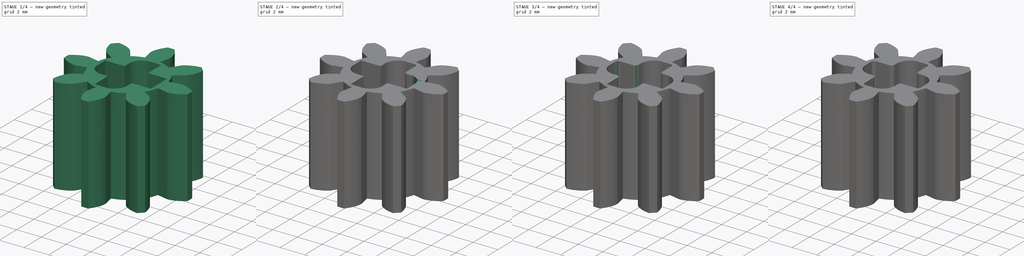
[diagram: build sequence overview — one tinted view per stage of 4, left to right]
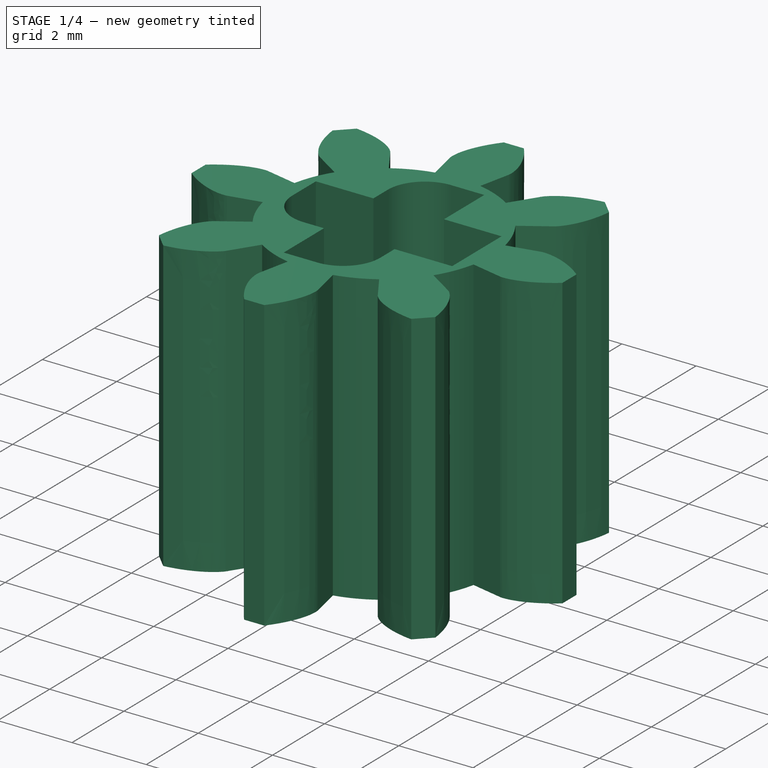
[diagram: stage 1 of 4 — iso view after this stage's code; geometry added in this stage tinted green]
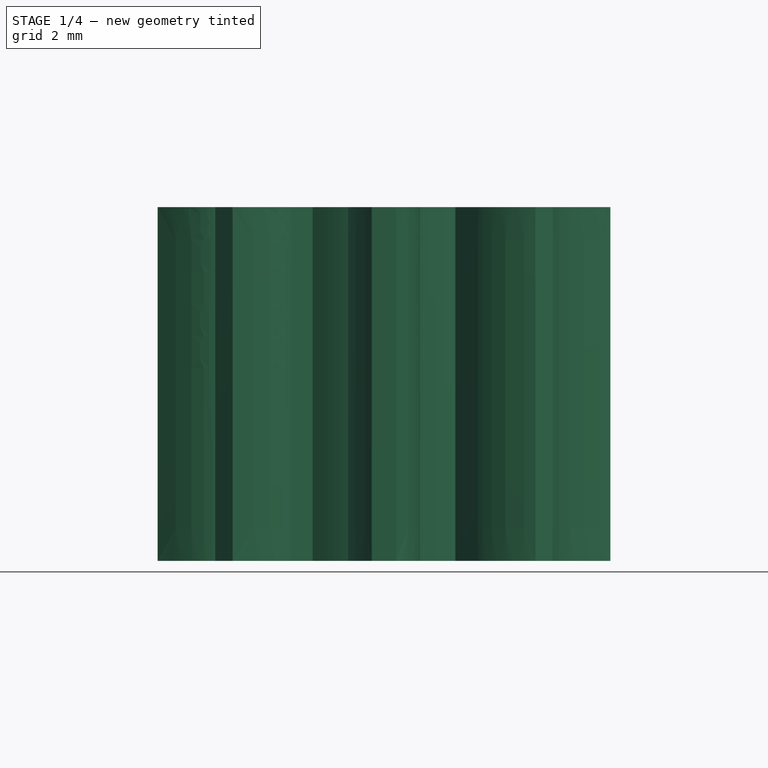
[diagram: stage 1 of 4 — front view after this stage's code; geometry added in this stage tinted green]
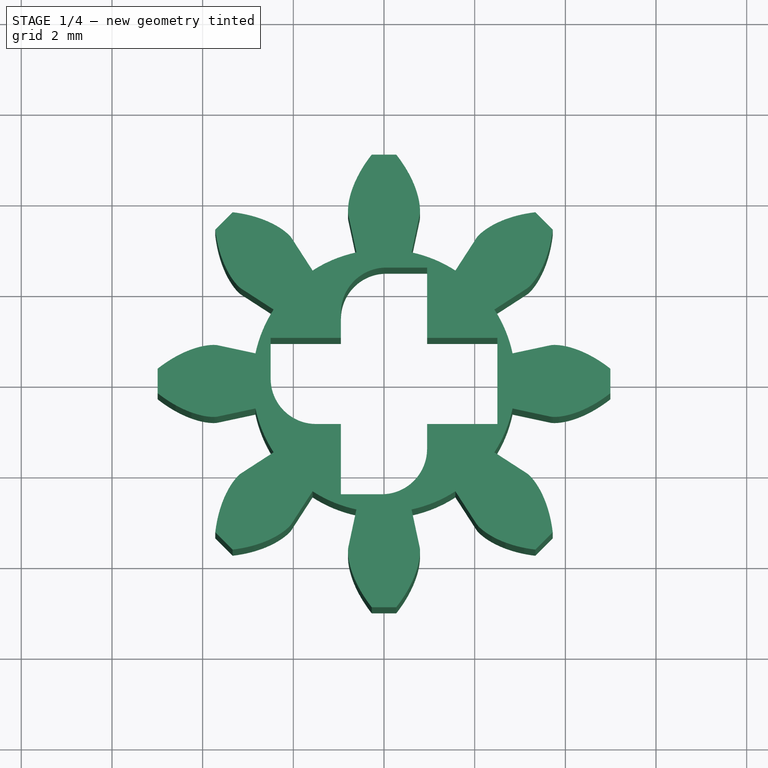
[diagram: stage 1 of 4 — top view after this stage's code; geometry added in this stage tinted green]
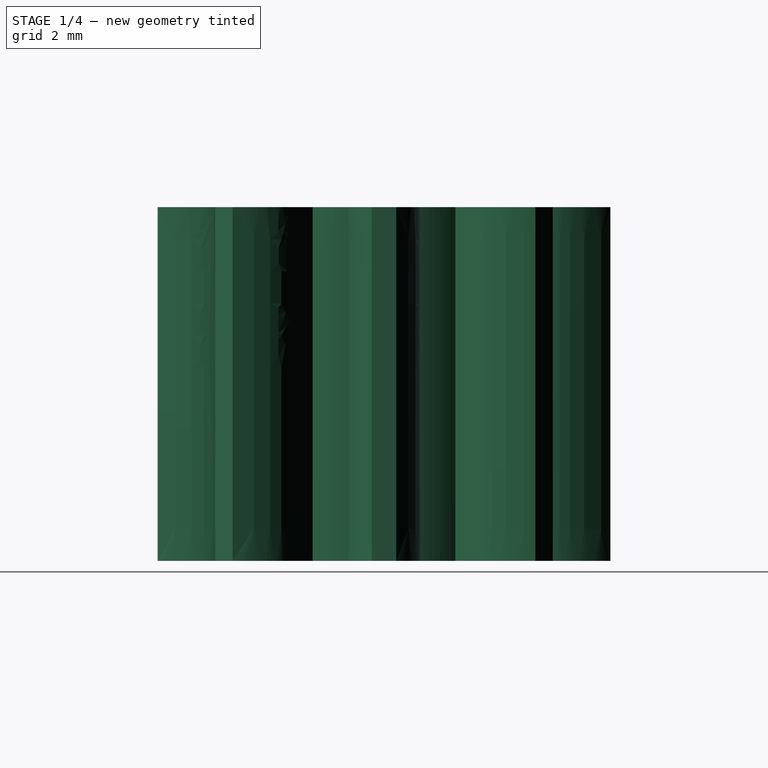
[diagram: stage 1 of 4 — right view after this stage's code; geometry added in this stage tinted green]
FCSTD DOCUMENT  (FreeCAD 0.18R15495 (Git))
Label: Gear1
License: All rights reserved
LicenseURL: http://en.wikipedia.org/wiki/All_rights_reserved
objects: PartDesign::Fillet×12, Sketcher::SketchObject×2, Part::FeaturePython×1, PartDesign::FeatureBase×1, PartDesign::Body×1, PartDesign::Pocket×1, PartDesign::PolarPattern×1, PartDesign::Pad×1
note: 22 computed .brp shape members not serialized (recipe doc carries the construction recipe); baked Part::Feature solids carry a one-line shape summary decoded from their .brp

FEATURE [Part::FeaturePython] InvoluteGear  # WARN: FeaturePython — macro-defined, semantics opaque (R4)
  backlash = 0
  beta = 0
  clearance = 0.25
  double_helix = false
  head = 0
  height = 7.8
  module = 1
  numpoints = 12
  pressure_angle = 20
  reversed_backlash = false
  shift = 0
  simple = false
  teeth = 8
  undercut = false
FEATURE [Sketcher::SketchObject] Sketch
  MapMode = 5
  Placement = pos=(0,0,0) rot=(1,0,0;3.14159rad)
  sketch-geometry (4):
    g0: LineSegment StartX=0.95 StartY=0 StartZ=0 EndX=0.95 EndY=2.5 EndZ=0
    g1: LineSegment StartX=0.95 StartY=2.5 StartZ=0 EndX=-0.95 EndY=2.5 EndZ=0
    g2: LineSegment StartX=-0.95 StartY=2.5 StartZ=0 EndX=-0.95 EndY=0 EndZ=0
    g3: LineSegment StartX=-0.95 StartY=0 StartZ=0 EndX=0.95 EndY=0 EndZ=0
  constraints (12):
    c: Vertical(g2)
    c: Vertical(g0)
    c: Horizontal(g1)
    c: Coincident(g1,g0)
    c: Coincident(g2,g1)
    c: DistanceY(g-1,g0) = 2.5
    c: DistanceX(g-1,g0) = 0.95
    c: DistanceX(g2,g-1) = 0.95
    c: PointOnObject(g2,g-1)
    c: PointOnObject(g0,g-1)
    c: Coincident(g3,g2)
    c: Coincident(g0,g3)
FEATURE [PartDesign::FeatureBase] BaseFeature
  BaseFeature = -> InvoluteGear
FEATURE [PartDesign::Body] Body
  BaseFeature = -> InvoluteGear
  Group = -> [BaseFeature,Sketch001,Sketch,Pad,Pocket,PolarPattern,Fillet,Fillet001,Fillet002,Fillet003,Fillet004,Fillet005,Fillet006,Fillet007,Fillet008,Fillet009,Fillet010,Fillet011]
  Origin = -> Origin
  Tip = -> Fillet011
FEATURE [PartDesign::Pocket] Pocket
  BaseFeature = -> Pad
  Length = 5
  Length2 = 100
  Profile = -> Sketch
  Type = 1
FEATURE [PartDesign::PolarPattern] PolarPattern
  Angle = 360
  Axis = -> Sketch [N_Axis]
  BaseFeature = -> Pocket
  Occurrences = 4
  Originals = -> [Pocket]
FEATURE [Sketcher::SketchObject] Sketch001
  MapMode = 5
  Placement = pos=(0,0,0) rot=(1,0,0;3.14159rad)
  Support = -> [PolarPattern]
  sketch-geometry (1):
    g0: Circle CenterX=0 CenterY=0 CenterZ=0 NormalX=0 NormalY=0 NormalZ=1 AngleXU=0 Radius=2.9
  constraints (1):
    c: Radius(g0) = 2.9
FEATURE [PartDesign::Pad] Pad
  BaseFeature = -> BaseFeature
  Length = 7.8
  Length2 = 100
  Profile = -> Sketch001
  Reversed = true
  Type = 0
FEATURE [PartDesign::Fillet] Fillet
  Base = -> PolarPattern [Edge116]
  BaseFeature = -> PolarPattern
  Radius = 1
FEATURE [PartDesign::Fillet] Fillet001
  Base = -> Fillet [Edge56]
  BaseFeature = -> Fillet
  Radius = 1
FEATURE [PartDesign::Fillet] Fillet002
  Base = -> Fillet001 [Edge74]
  BaseFeature = -> Fillet001
  Radius = 1
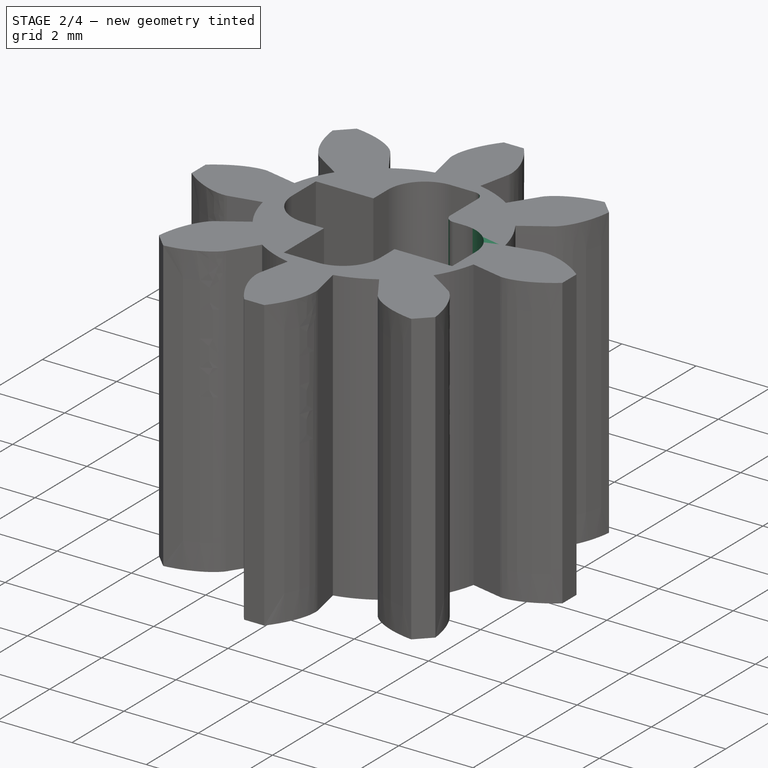
[diagram: stage 2 of 4 — iso view after this stage's code; geometry added in this stage tinted green]
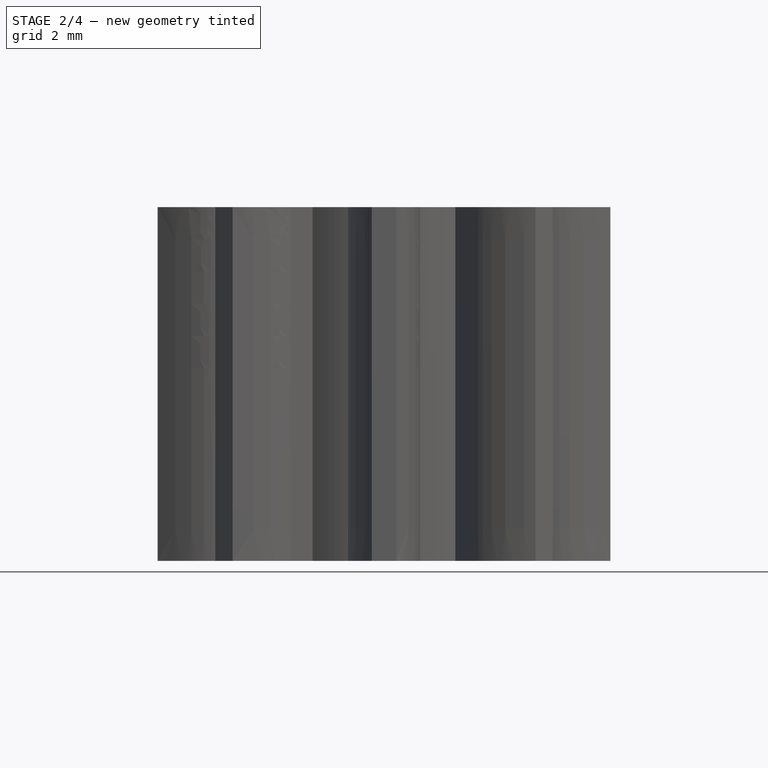
[diagram: stage 2 of 4 — front view after this stage's code; geometry added in this stage tinted green]
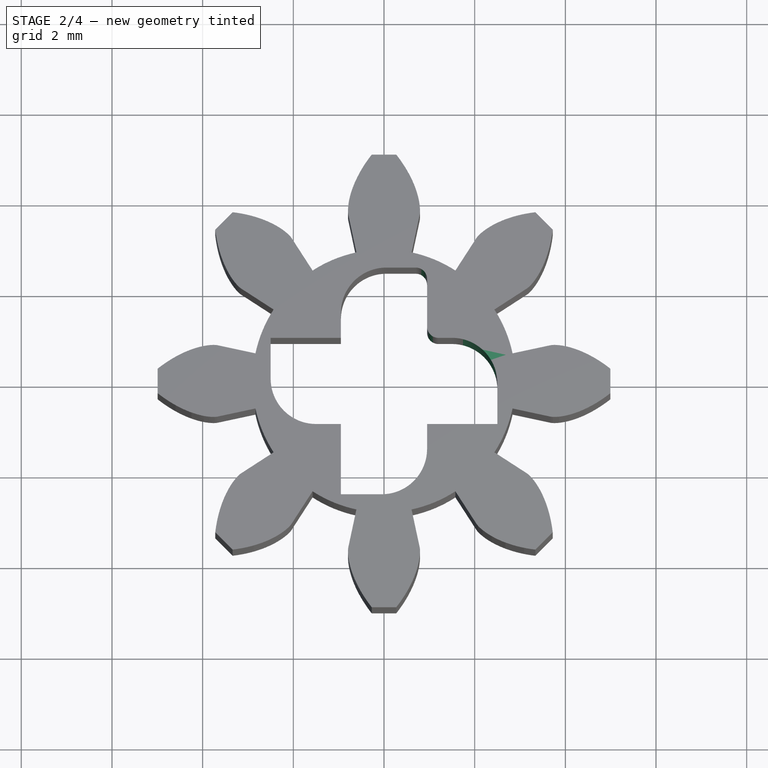
[diagram: stage 2 of 4 — top view after this stage's code; geometry added in this stage tinted green]
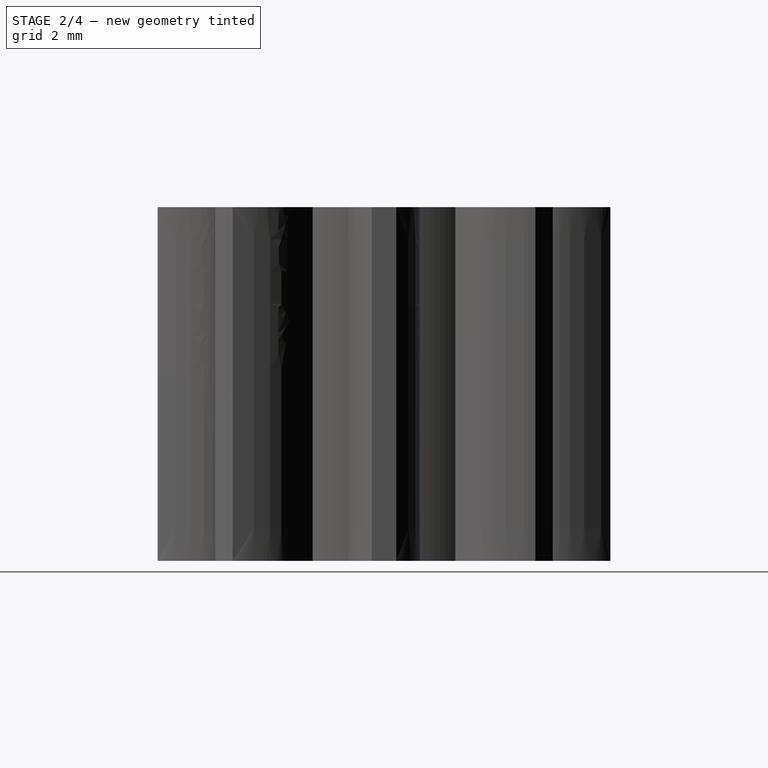
[diagram: stage 2 of 4 — right view after this stage's code; geometry added in this stage tinted green]
FEATURE [PartDesign::Fillet] Fillet003
  Base = -> Fillet002 [Edge65]
  BaseFeature = -> Fillet002
  Radius = 1
FEATURE [PartDesign::Fillet] Fillet004
  Base = -> Fillet003 [Edge57]
  BaseFeature = -> Fillet003
  Radius = 0.25
FEATURE [PartDesign::Fillet] Fillet005
  Base = -> Fillet004 [Edge58]
  BaseFeature = -> Fillet004
  Radius = 0.25
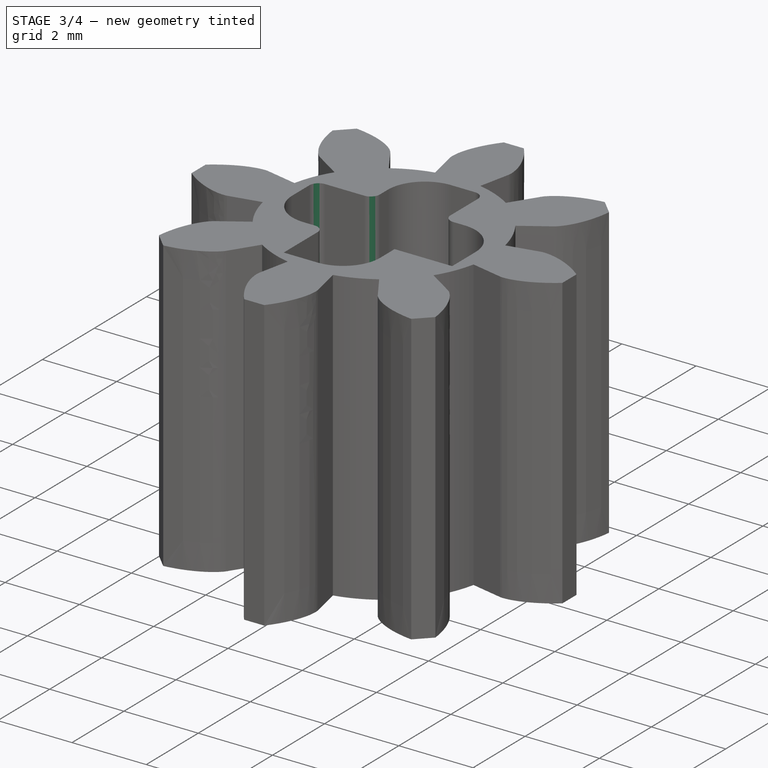
[diagram: stage 3 of 4 — iso view after this stage's code; geometry added in this stage tinted green]
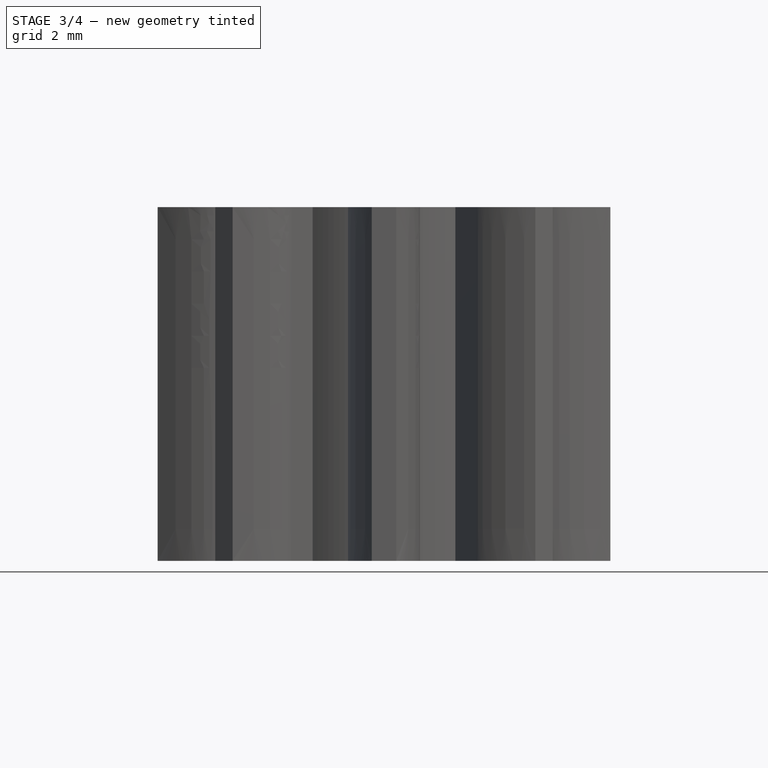
[diagram: stage 3 of 4 — front view after this stage's code; geometry added in this stage tinted green]
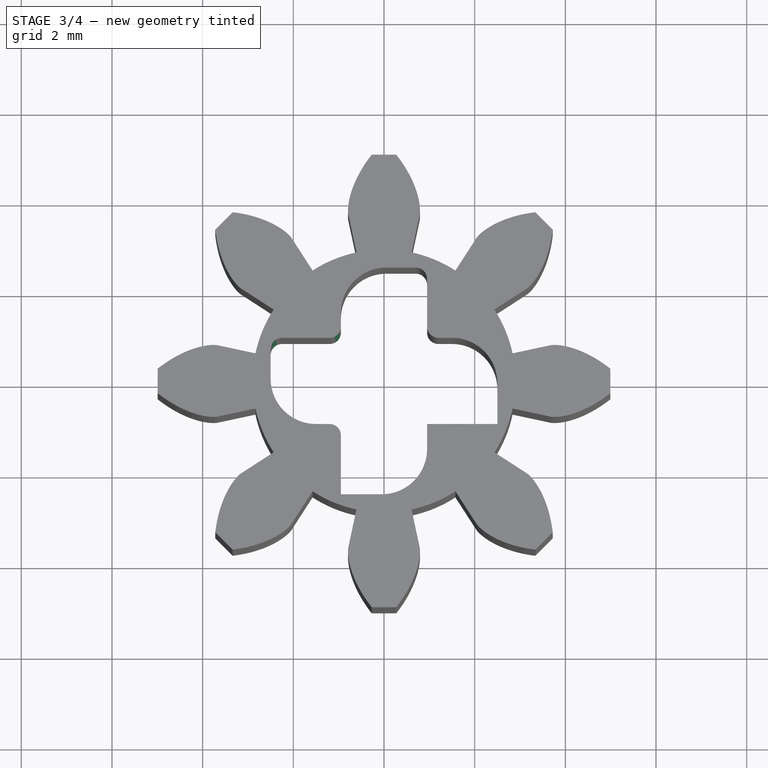
[diagram: stage 3 of 4 — top view after this stage's code; geometry added in this stage tinted green]
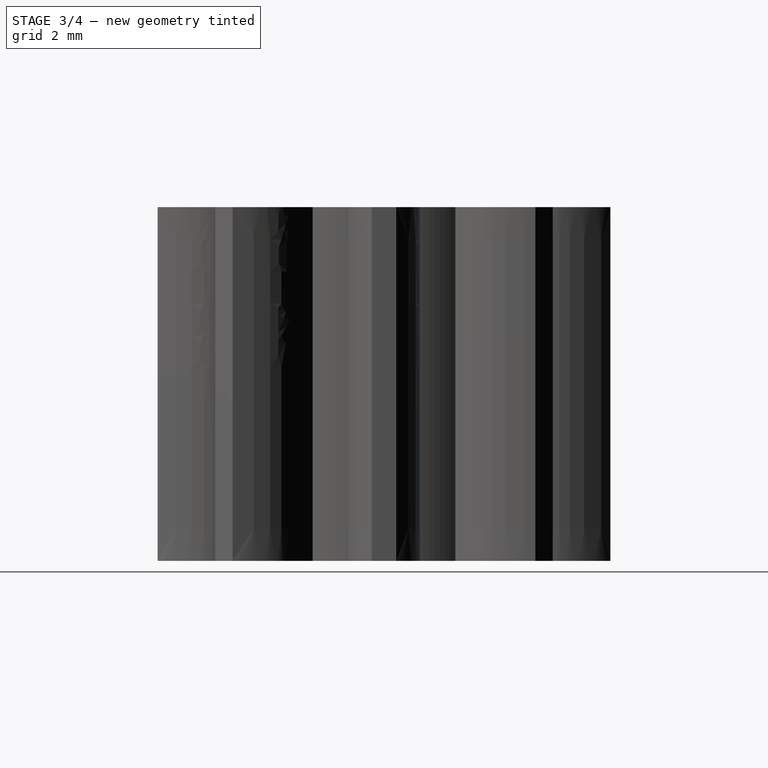
[diagram: stage 3 of 4 — right view after this stage's code; geometry added in this stage tinted green]
FEATURE [PartDesign::Fillet] Fillet006
  Base = -> Fillet005 [Edge67]
  BaseFeature = -> Fillet005
  Radius = 0.25
FEATURE [PartDesign::Fillet] Fillet007
  Base = -> Fillet006 [Edge60]
  BaseFeature = -> Fillet006
  Radius = 0.25
FEATURE [PartDesign::Fillet] Fillet008
  Base = -> Fillet007 [Edge69]
  BaseFeature = -> Fillet007
  Radius = 0.25
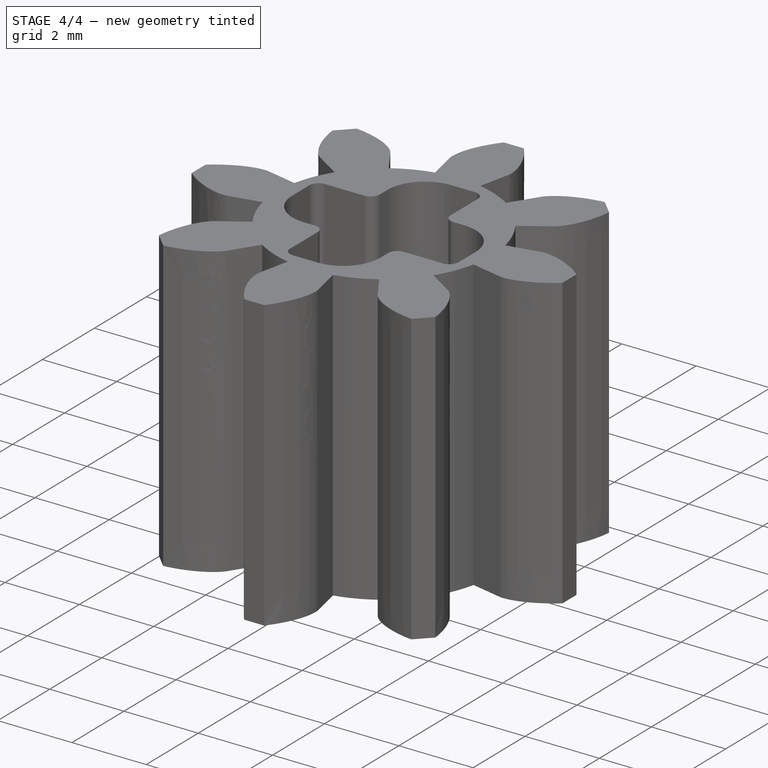
[diagram: stage 4 of 4 — iso view after this stage's code; geometry added in this stage tinted green]
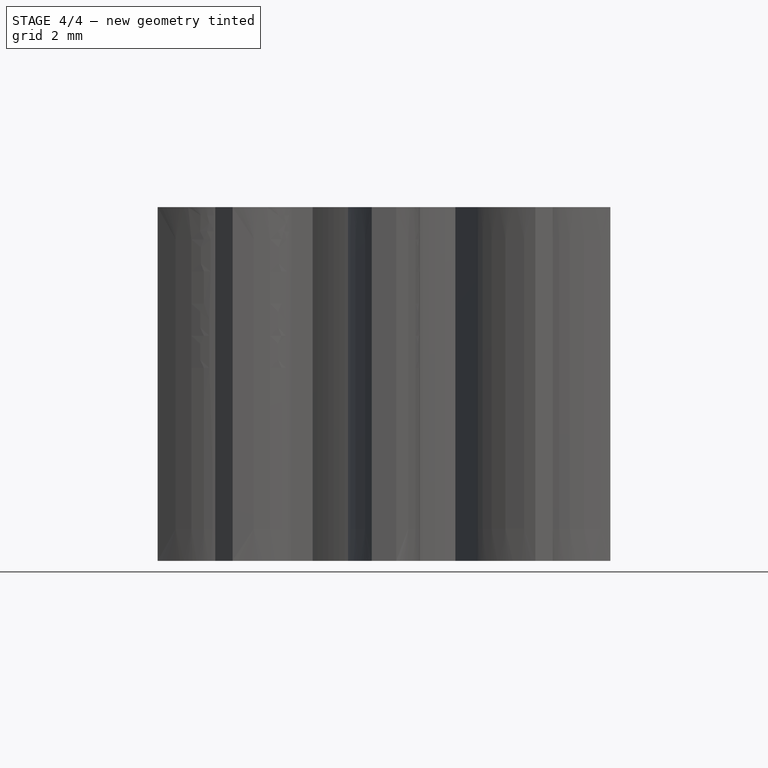
[diagram: stage 4 of 4 — front view after this stage's code; geometry added in this stage tinted green]
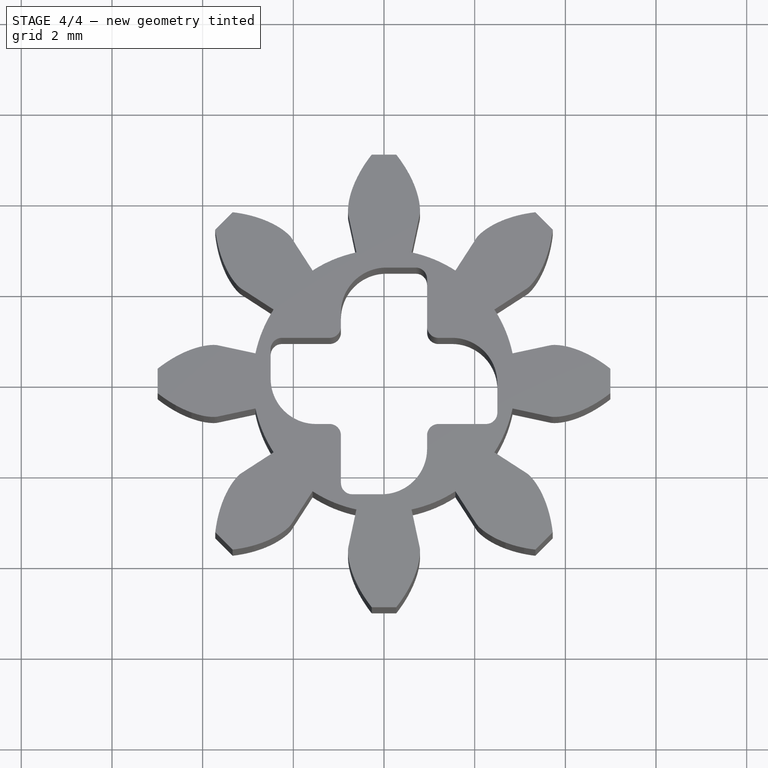
[diagram: stage 4 of 4 — top view after this stage's code; geometry added in this stage tinted green]
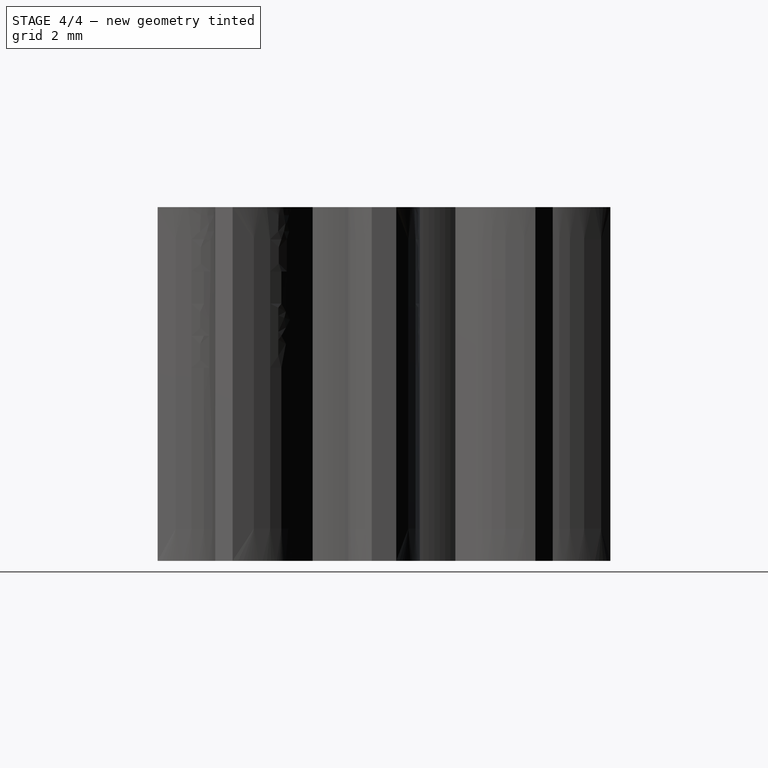
[diagram: stage 4 of 4 — right view after this stage's code; geometry added in this stage tinted green]
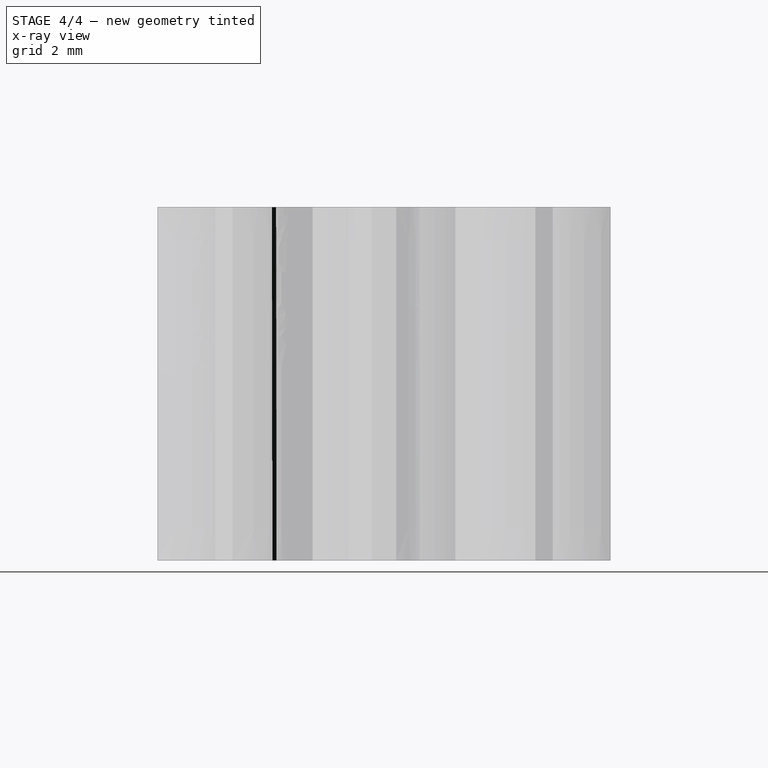
[diagram: stage 4 of 4 — x-ray composite at the right view; earlier geometry ghosted, this stage's added geometry solid]
FEATURE [PartDesign::Fillet] Fillet009
  Base = -> Fillet008 [Edge62]
  BaseFeature = -> Fillet008
  Radius = 0.25
FEATURE [PartDesign::Fillet] Fillet010
  Base = -> Fillet009 [Edge71]
  BaseFeature = -> Fillet009
  Radius = 0.25
FEATURE [PartDesign::Fillet] Fillet011
  Base = -> Fillet010 [Edge64]
  BaseFeature = -> Fillet010
  Radius = 0.25
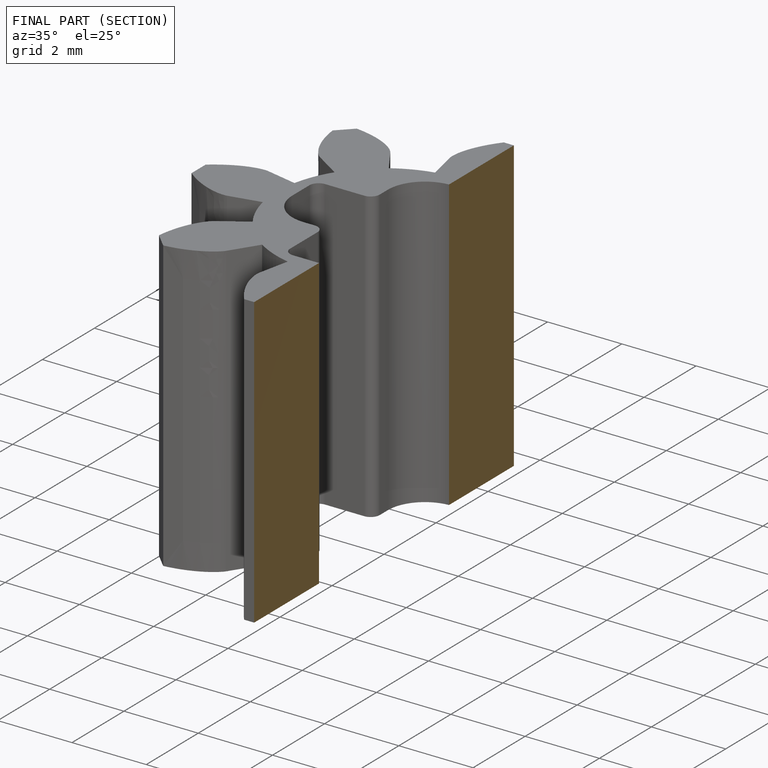
[diagram: finished part — half-section view (interior)]
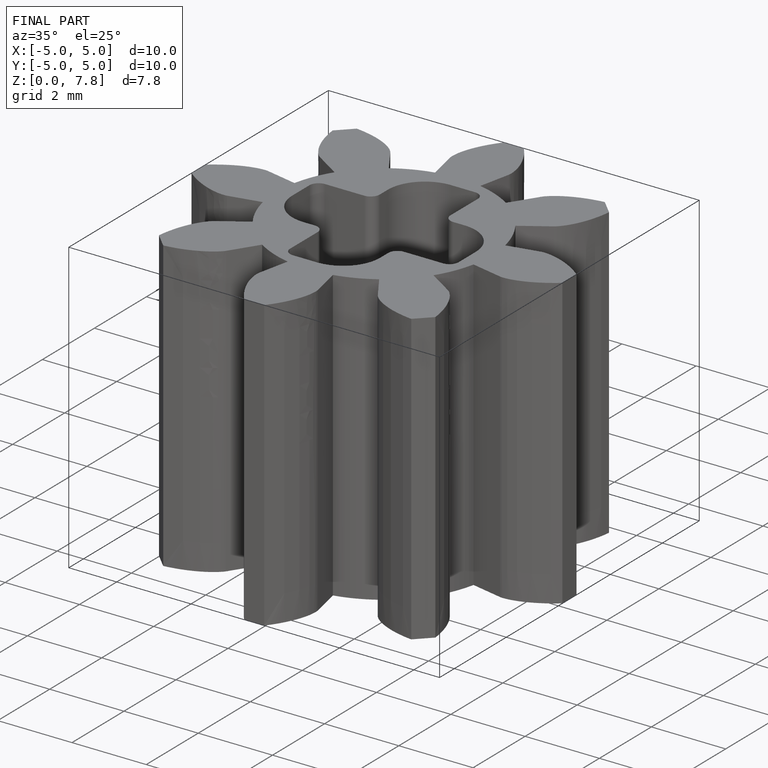
[diagram: finished part — iso view with bounding-box wireframe]
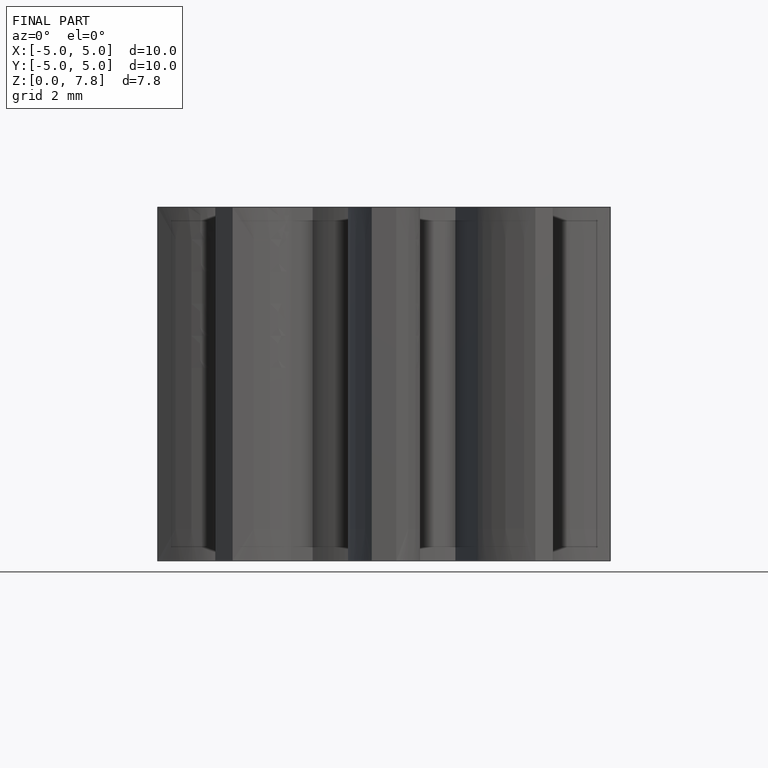
[diagram: finished part — front view with bounding-box wireframe]
